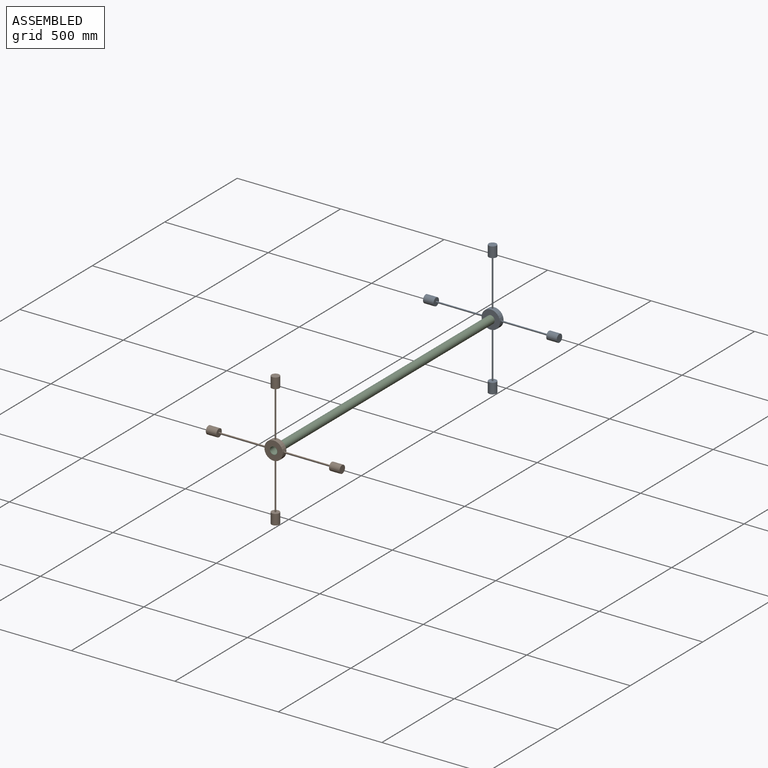
[diagram: assembled view]
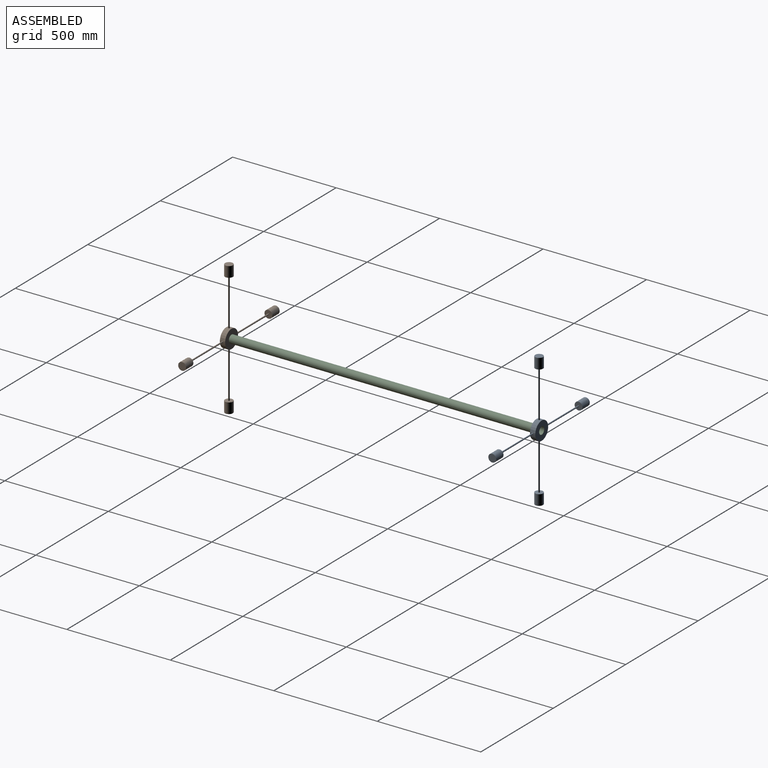
[diagram: assembled view, second angle]
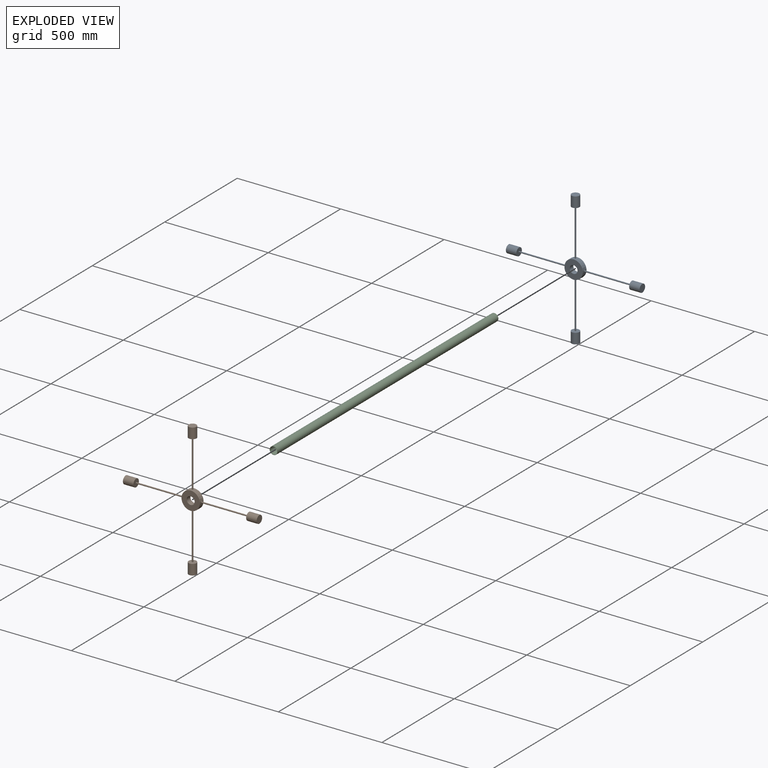
[diagram: exploded view]
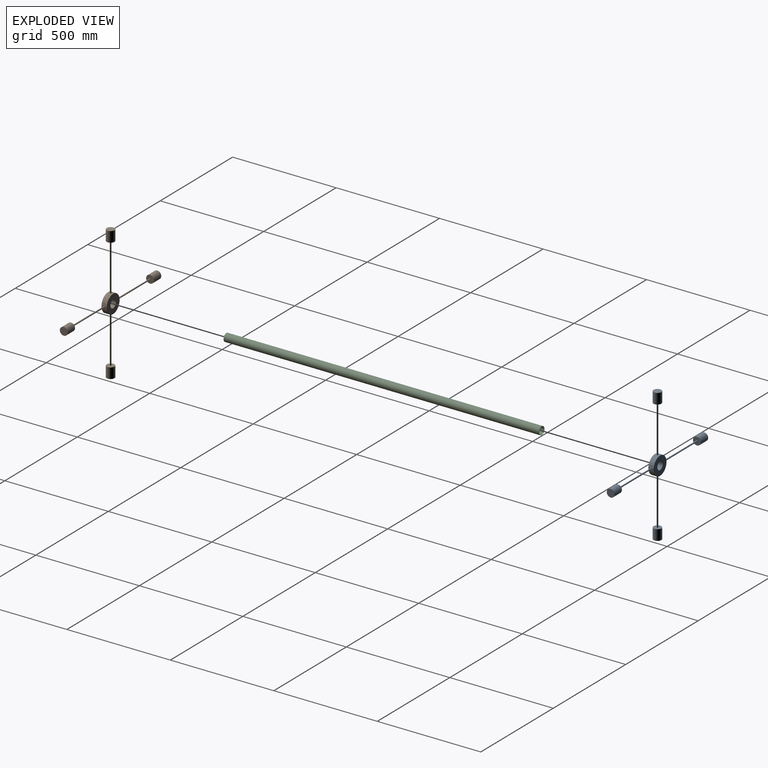
[diagram: exploded view, second angle]
ASSEMBLY  parts=3 mates=2
PART A: 20 faces, bbox 646.2x38.1x646.2 mm
  f0: cylinder r=19.05mm len=38.1mm, axis (0,1,0), area 3040.2mm2, adj f2,f3
  f1: cylinder r=44.45mm len=88.9mm, axis (0,1,0), area 6967.3mm2, adj f2,f3,f4,f8,f12,f16
  f2: plane 88.9x88.9mm, normal (0,-1,0), area 5067.1mm2, adj f0,f1
  f3: plane 88.9x88.9mm, normal (0,1,0), area 5067.1mm2, adj f0,f1
  f4: cylinder r=3.17mm len=227.95mm, axis (0,0,-1), area 4546.3mm2, adj f1,f7
  f5: plane 38.1x38.1mm, normal (0,0,1), area 1140.1mm2, adj f6
  f6: cylinder r=19.05mm len=50.8mm, axis (0,0,-1), area 6080.5mm2, adj f5,f7
  f7: plane 38.1x38.1mm, normal (0,0,-1), area 1108.4mm2, adj f4,f6
  f8: cylinder r=3.17mm len=227.95mm, axis (-1,0,0), area 4546.3mm2, adj f1,f11
  f9: plane 38.1x38.1mm, normal (1,0,0), area 1140.1mm2, adj f10
  f10: cylinder r=19.05mm len=50.8mm, axis (-1,0,0), area 6080.5mm2, adj f9,f11
  f11: plane 38.1x38.1mm, normal (-1,0,0), area 1108.4mm2, adj f8,f10
  f12: cylinder r=3.17mm len=227.95mm, axis (0,0,1), area 4546.3mm2, adj f1,f15
  f13: plane 38.1x38.1mm, normal (0,0,-1), area 1140.1mm2, adj f14
  f14: cylinder r=19.05mm len=50.8mm, axis (0,0,1), area 6080.5mm2, adj f13,f15
  f15: plane 38.1x38.1mm, normal (0,0,1), area 1108.4mm2, adj f12,f14
  f16: cylinder r=3.17mm len=227.95mm, axis (1,0,0), area 4546.3mm2, adj f1,f17
  f17: plane 38.1x38.1mm, normal (1,0,0), area 1108.4mm2, adj f16,f19
  f18: plane 38.1x38.1mm, normal (-1,0,0), area 1140.1mm2, adj f19
  f19: cylinder r=19.05mm len=50.8mm, axis (1,0,0), area 6080.5mm2, adj f17,f18
PART B: same geometry as A
PART C: 4 faces, bbox 38.1x1524x38.1 mm
  f0: cylinder r=17.46mm len=1524mm, axis (0,1,0), area 167213.5mm2, adj f2,f3
  f1: cylinder r=19.05mm len=1524mm, axis (0,1,0), area 182414.7mm2, adj f2,f3
  f2: plane 38.1x38.1mm, normal (0,-1,0), area 182.1mm2, adj f0,f1
  f3: plane 38.1x38.1mm, normal (0,1,0), area 182.1mm2, adj f0,f1
PLACE A t=(11.81,-110.32,228.13)mm
PLACE B t=(11.81,-1608.92,228.13)mm
PLACE C t=(11.81,-859.62,228.13)mm
MATE fastened C.f1 <-> B.f0  axis (0,-1,0) through (11.81,-1621.62,228.13)mm
MATE fastened C.f1 <-> A.f0  axis (0,1,0) through (11.81,-97.62,228.13)mm
